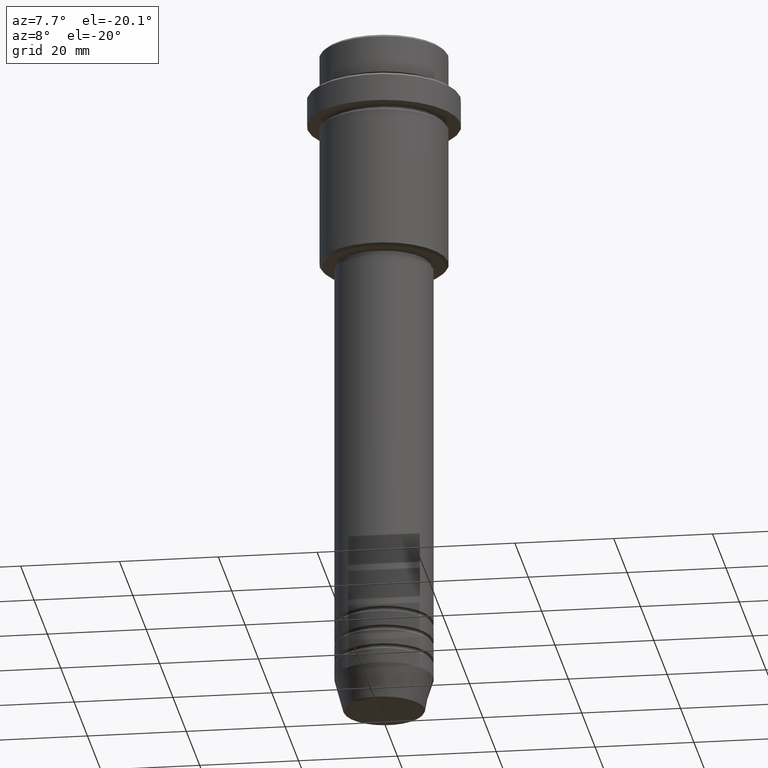
[diagram: clean part render]
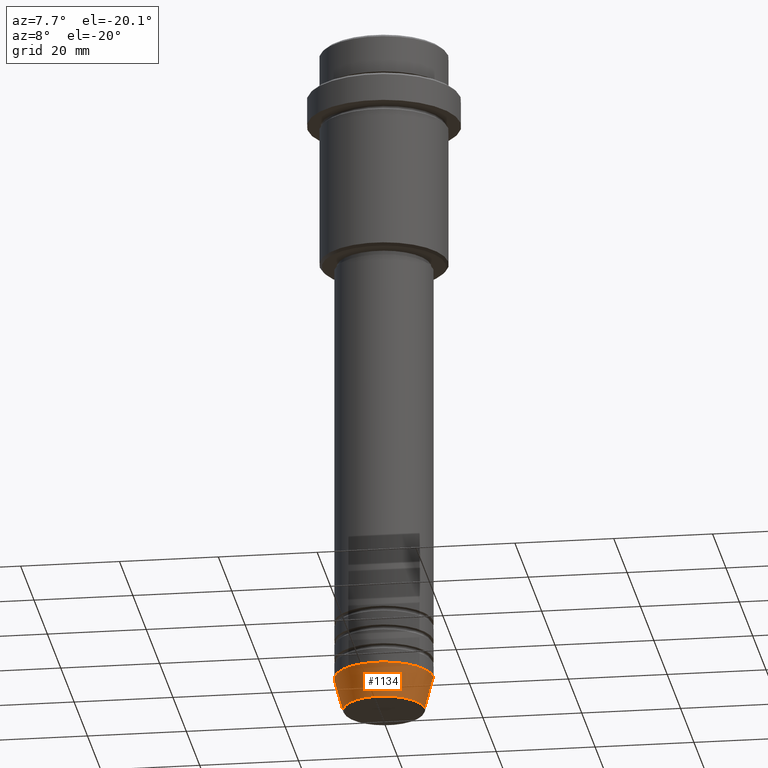
[diagram: same view with one face highlighted and labeled with its STEP entity id]
A machine part, auxiliary view. The second image highlights one B-rep face of the part: STEP entity #1134.
In plain terms, the highlighted conical surface has half-angle 15 deg.
Its self-contained STEP definition (entity closure, byte-faithful):
#69 = VECTOR ( 'NONE', #481, 1000.000000000000114 ) ;
#72 = CARTESIAN_POINT ( 'NONE',  ( -10.00000000000000000, 1.224646799147353256E-15, -133.0000000000000000 ) ) ;
#92 = VERTEX_POINT ( 'NONE', #324 ) ;
#110 = EDGE_CURVE ( 'NONE', #524, #1136, #138, .T. ) ;
#138 = LINE ( 'NONE', #692, #1172 ) ;
#172 = EDGE_CURVE ( 'NONE', #92, #1136, #647, .T. ) ;
#194 = DIRECTION ( 'NONE',  ( 1.000000000000000000, 0.000000000000000000, 0.000000000000000000 ) ) ;
#324 = CARTESIAN_POINT ( 'NONE',  ( -10.00000000000000000, 1.224646799147353256E-15, -133.0000000000000000 ) ) ;
#329 = CARTESIAN_POINT ( 'NONE',  ( 8.223655072137189492, 0.000000000000000000, -139.6294095225512706 ) ) ;
#333 = FACE_OUTER_BOUND ( 'NONE', #679, .T. ) ;
#481 = DIRECTION ( 'NONE',  ( -0.2588190451025214611, 3.169619151431774186E-17, 0.9659258262890679791 ) ) ;
#498 = DIRECTION ( 'NONE',  ( 1.000000000000000000, 0.000000000000000000, 0.000000000000000000 ) ) ;
#524 = VERTEX_POINT ( 'NONE', #329 ) ;
#602 = AXIS2_PLACEMENT_3D ( 'NONE', #831, #1022, #935 ) ;
#610 = CARTESIAN_POINT ( 'NONE',  ( 0.000000000000000000, 0.000000000000000000, -139.6294095225512706 ) ) ;
#624 = CARTESIAN_POINT ( 'NONE',  ( 0.000000000000000000, 0.000000000000000000, -133.0000000000000000 ) ) ;
#647 = CIRCLE ( 'NONE', #602, 10.00000000000000000 ) ;
#676 = EDGE_CURVE ( 'NONE', #1092, #524, #756, .T. ) ;
#679 = EDGE_LOOP ( 'NONE', ( #832, #976, #1262, #1047 ) ) ;
#686 = AXIS2_PLACEMENT_3D ( 'NONE', #624, #942, #194 ) ;
#692 = CARTESIAN_POINT ( 'NONE',  ( 10.00000000000000000, 0.000000000000000000, -133.0000000000000000 ) ) ;
#742 = CARTESIAN_POINT ( 'NONE',  ( 10.00000000000000000, 0.000000000000000000, -133.0000000000000000 ) ) ;
#756 = CIRCLE ( 'NONE', #1336, 8.223655072137189492 ) ;
#831 = CARTESIAN_POINT ( 'NONE',  ( 0.000000000000000000, 0.000000000000000000, -133.0000000000000000 ) ) ;
#832 = ORIENTED_EDGE ( 'NONE', *, *, #1084, .F. ) ;
#935 = DIRECTION ( 'NONE',  ( 1.000000000000000000, 0.000000000000000000, 0.000000000000000000 ) ) ;
#942 = DIRECTION ( 'NONE',  ( -0.000000000000000000, -0.000000000000000000, 1.000000000000000000 ) ) ;
#976 = ORIENTED_EDGE ( 'NONE', *, *, #676, .T. ) ;
#1022 = DIRECTION ( 'NONE',  ( -0.000000000000000000, -0.000000000000000000, 1.000000000000000000 ) ) ;
#1028 = CARTESIAN_POINT ( 'NONE',  ( -8.223655072137189492, 1.115877042642911856E-15, -139.6294095225512706 ) ) ;
#1033 = DIRECTION ( 'NONE',  ( -0.000000000000000000, -0.000000000000000000, 1.000000000000000000 ) ) ;
#1047 = ORIENTED_EDGE ( 'NONE', *, *, #172, .F. ) ;
#1049 = LINE ( 'NONE', #72, #69 ) ;
#1084 = EDGE_CURVE ( 'NONE', #1092, #92, #1049, .T. ) ;
#1092 = VERTEX_POINT ( 'NONE', #1028 ) ;
#1121 = CONICAL_SURFACE ( 'NONE', #686, 10.00000000000000000, 0.2617993877991502405 ) ;
#1134 = ADVANCED_FACE ( 'NONE', ( #333 ), #1121, .T. ) ;
#1136 = VERTEX_POINT ( 'NONE', #742 ) ;
#1172 = VECTOR ( 'NONE', #1352, 1000.000000000000114 ) ;
#1262 = ORIENTED_EDGE ( 'NONE', *, *, #110, .T. ) ;
#1336 = AXIS2_PLACEMENT_3D ( 'NONE', #610, #1033, #498 ) ;
#1352 = DIRECTION ( 'NONE',  ( 0.2588190451025214611, 0.000000000000000000, 0.9659258262890679791 ) ) ;